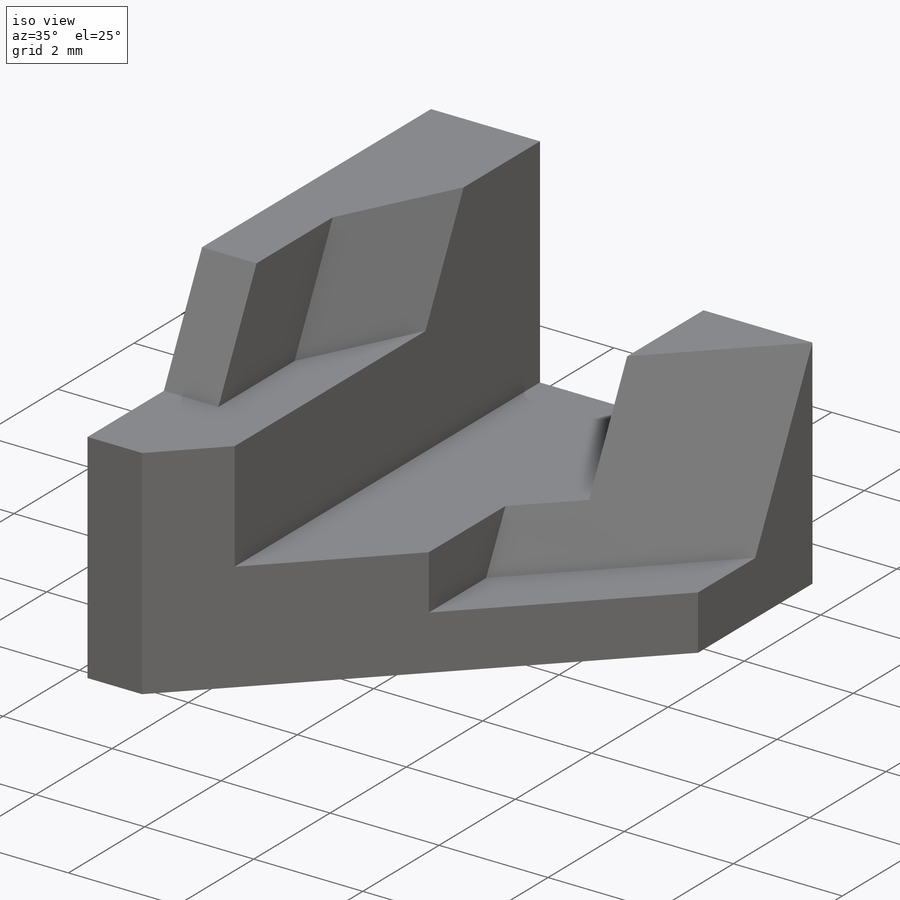
[diagram: iso view]
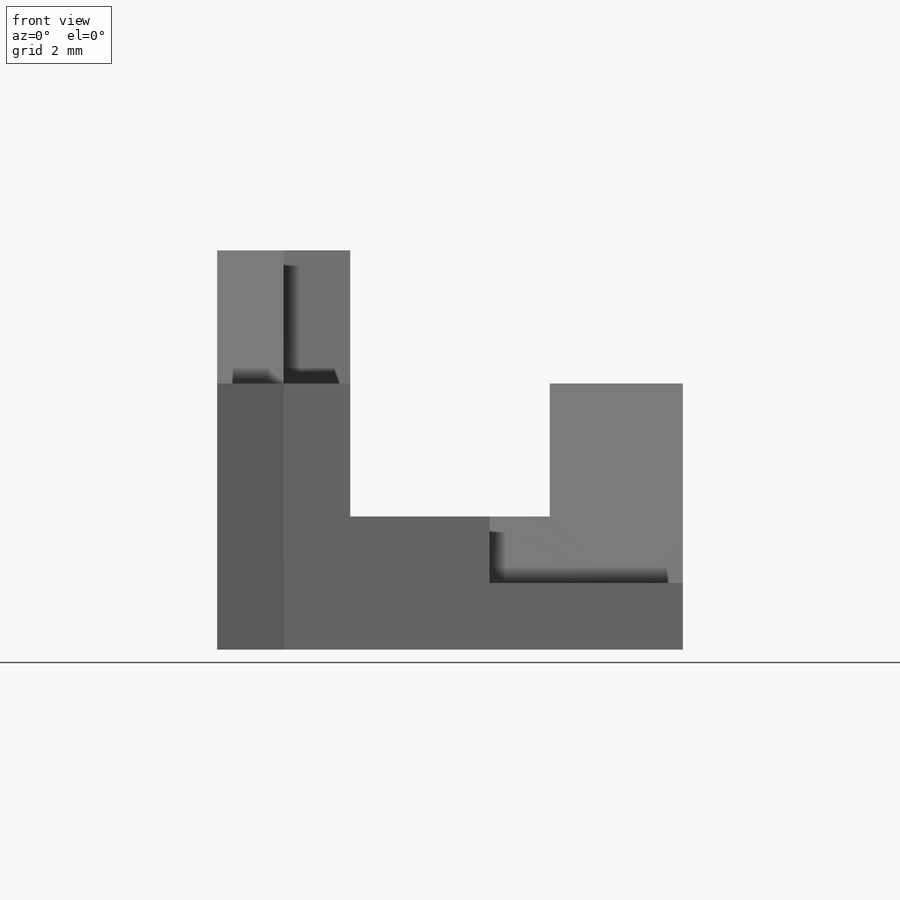
[diagram: front view]
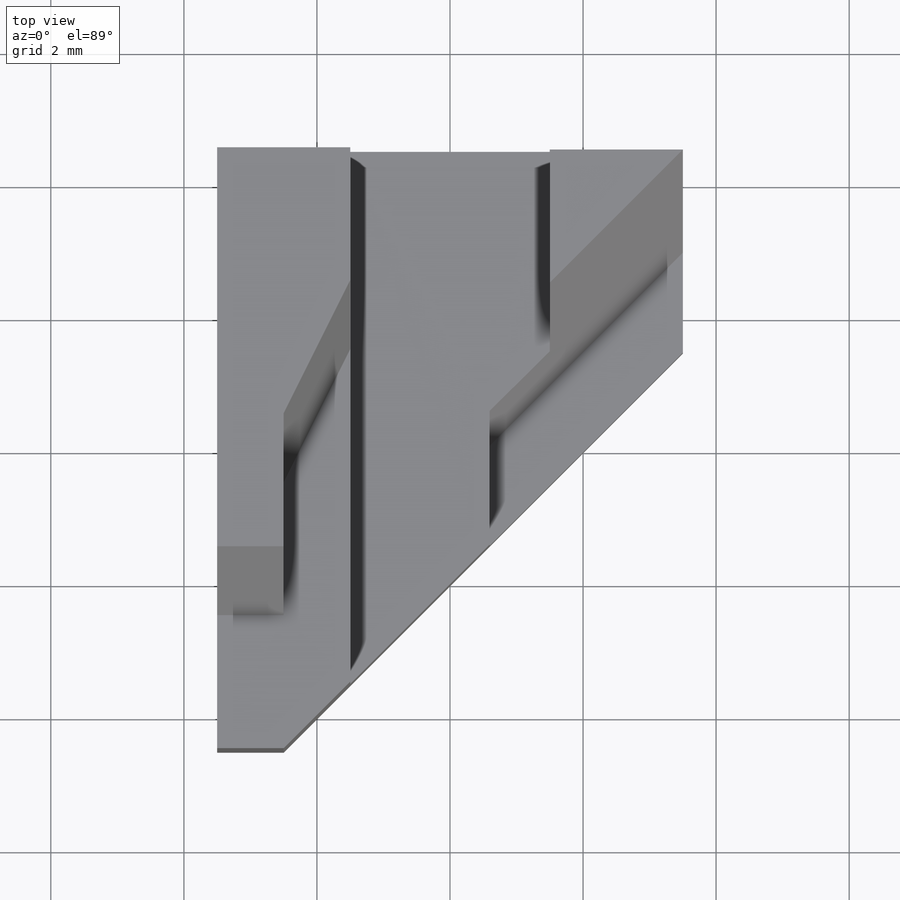
[diagram: top view]
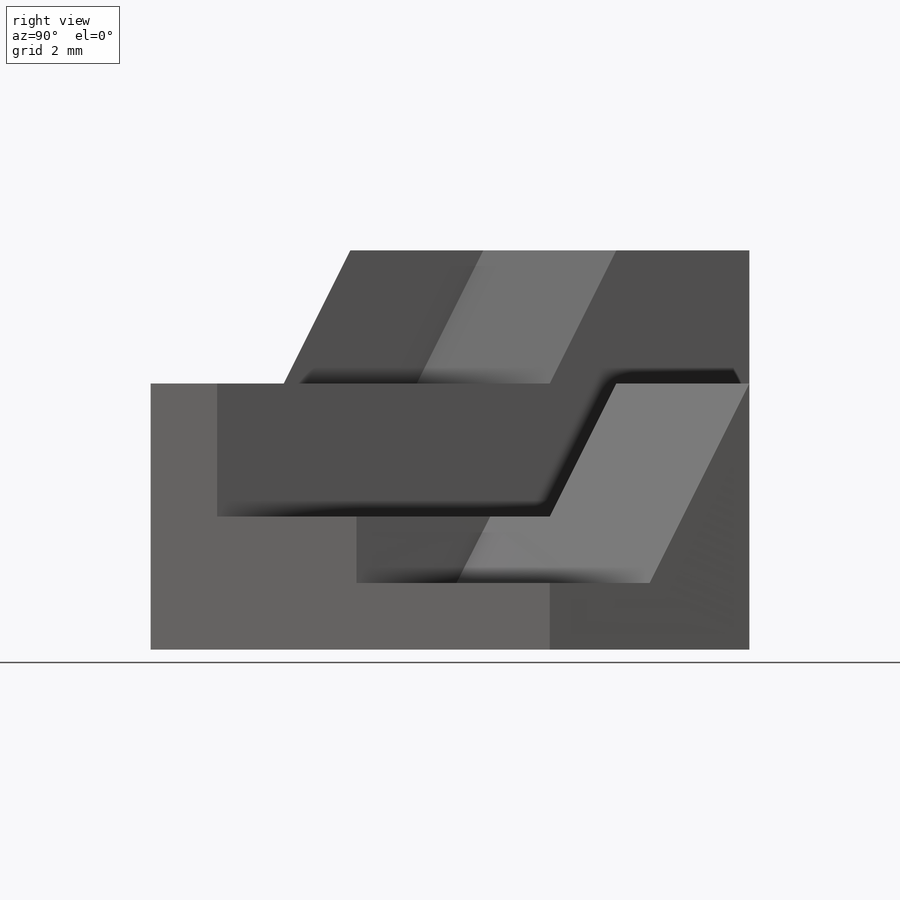
[diagram: right view]
SOLIDWORKS PART (.sldprt)
format: sldprt  version: not decoded by parser v0  size: 275,456 bytes
history: native  units: mm
features: sketch x10, cut_extrude x8, material x1, extrude x1, chamfer x1 (+13 scaffold rows collapsed)
feature tree (34):
  scaffold x13  (default folders/planes/origin — collapsed)
  material  "Material <not specified>"
  sketch  "Sketch1"  dims[D1=9.0mm D2=7.0mm]
  extrude  "Boss-Extrude1"  Depth=6mm
  sketch  "Sketch2"  dims[D1=2.0mm D2=2.0mm D3=2.0mm D4=3.0mm]
  cut_extrude  "Cut-Extrude2"  [1 undecoded]
  sketch  "Sketch4"  dims[D1=6.0mm D2=6.0mm]
  cut_extrude  "Cut-Extrude3"  [1 undecoded]
  sketch  "Sketch5"  dims[D1=2.0mm D2=1.0mm D3=2.0mm]
  cut_extrude  "Cut-Extrude4"  Depth=2mm
  chamfer  "Chamfer1"  Distance=1mm
  sketch  "Sketch6"
  cut_extrude  "Cut-Extrude5"  Depth=2mm
  sketch  "Sketch7"  dims[c1.D1=2.0mm c1.D2=2.0mm c2.D1=2.0mm]
  sketch  "3DSketch1"  dims[c1.D1=4.0mm c1.D2=4.0mm c2.D1=2.0mm c2.D2=2.0mm c3.D1=~5.09902mm c3.D2=~5.09902mm c4.D1=5.0mm c4.D2=5.0mm]
  cut_extrude  "Cut-Extrude6"  Depth=2mm
  sketch  "Sketch8"  dims[D1=1.5mm]
  cut_extrude  "Cut-Extrude7"  Depth=3mm
  sketch  "Sketch9"  dims[D1=1.5mm]
  cut_extrude  "Cut-Extrude8"  Depth=1mm
  sketch  "3DSketch2"  dims[c1.D1=1.0mm c1.D2=1.0mm c2.D1=~4.516762mm c2.D2=~4.516762mm c3.D1=3.0mm c3.D2=2.0mm]
  cut_extrude  "Cut-Extrude9"  Depth=10mm
decode coverage: 17 of 20 modeling features carry decoded parameters
note: ~ marks probable driven/reference dimensions
note: 2 parameter values undecoded
note: suppression state not decoded; provenance and decode notes live in map.json
